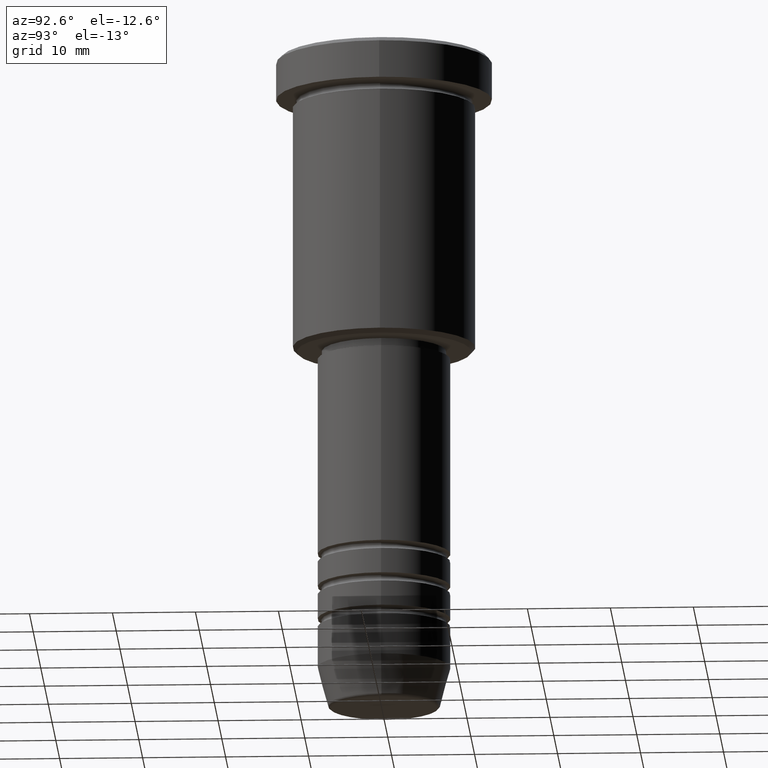
[diagram: clean part render]
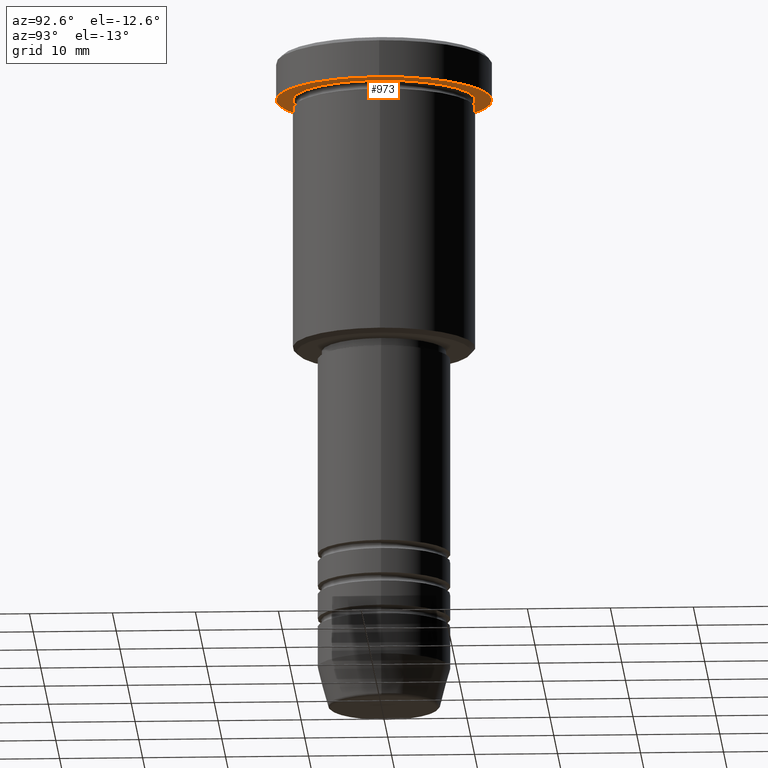
[diagram: same view with one face highlighted and labeled with its STEP entity id]
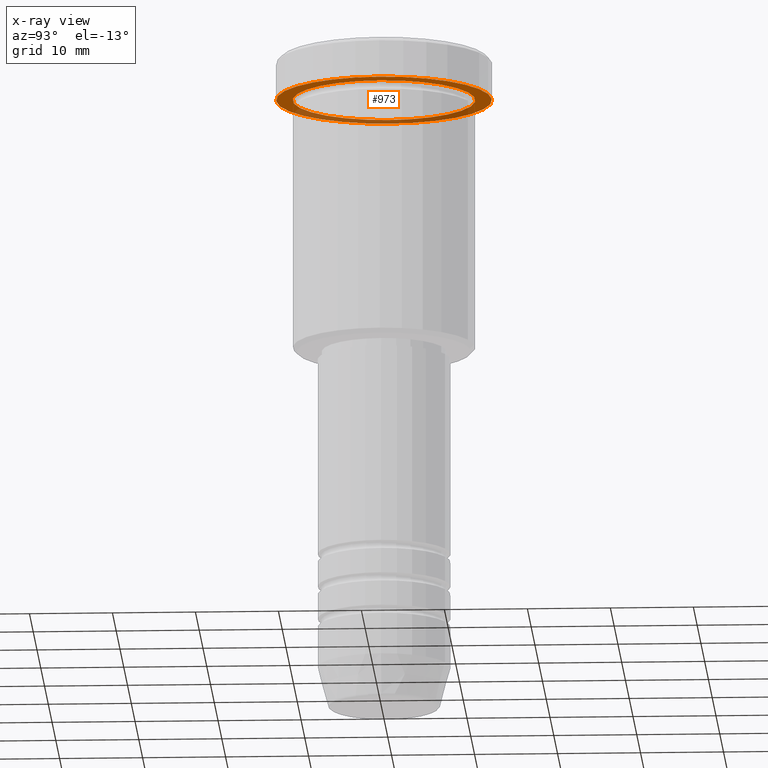
[diagram: x-ray of the same camera — body ghosted, the highlighted face saturated]
A machine part, auxiliary view. The second image highlights one B-rep face of the part: STEP entity #973.
The next image is the same camera in x-ray: the body ghosted, the highlighted face saturated — about 34% of this face is hidden behind the body in this view.
In plain terms, the highlighted planar face has unit normal (0, 0, -1).
Its self-contained STEP definition (entity closure, byte-faithful):
#34 = CIRCLE ( 'NONE', #450, 11.00000000000000000 ) ;
#63 = DIRECTION ( 'NONE',  ( -0.000000000000000000, -0.000000000000000000, 1.000000000000000000 ) ) ;
#91 = AXIS2_PLACEMENT_3D ( 'NONE', #716, #1096, #349 ) ;
#142 = EDGE_CURVE ( 'NONE', #1116, #904, #380, .T. ) ;
#148 = CIRCLE ( 'NONE', #91, 13.00000000000000000 ) ;
#156 = VERTEX_POINT ( 'NONE', #160 ) ;
#160 = CARTESIAN_POINT ( 'NONE',  ( 13.00000000000000000, 0.000000000000000000, -5.000000000000000000 ) ) ;
#179 = EDGE_CURVE ( 'NONE', #156, #1031, #148, .T. ) ;
#217 = EDGE_LOOP ( 'NONE', ( #767, #602 ) ) ;
#298 = ORIENTED_EDGE ( 'NONE', *, *, #179, .F. ) ;
#331 = FACE_OUTER_BOUND ( 'NONE', #723, .T. ) ;
#349 = DIRECTION ( 'NONE',  ( 1.000000000000000000, 0.000000000000000000, 0.000000000000000000 ) ) ;
#365 = CARTESIAN_POINT ( 'NONE',  ( 0.000000000000000000, 0.000000000000000000, -5.000000000000000000 ) ) ;
#380 = CIRCLE ( 'NONE', #909, 11.00000000000000000 ) ;
#420 = CARTESIAN_POINT ( 'NONE',  ( -13.00000000000000000, 1.592040838891559095E-15, -5.000000000000000000 ) ) ;
#426 = DIRECTION ( 'NONE',  ( -1.000000000000000000, 0.000000000000000000, 0.000000000000000000 ) ) ;
#450 = AXIS2_PLACEMENT_3D ( 'NONE', #1166, #715, #642 ) ;
#573 = AXIS2_PLACEMENT_3D ( 'NONE', #365, #742, #1107 ) ;
#602 = ORIENTED_EDGE ( 'NONE', *, *, #142, .T. ) ;
#642 = DIRECTION ( 'NONE',  ( -1.000000000000000000, 0.000000000000000000, 0.000000000000000000 ) ) ;
#680 = PLANE ( 'NONE',  #914 ) ;
#699 = EDGE_CURVE ( 'NONE', #904, #1116, #34, .T. ) ;
#701 = CARTESIAN_POINT ( 'NONE',  ( 0.000000000000000000, 0.000000000000000000, -5.000000000000000000 ) ) ;
#715 = DIRECTION ( 'NONE',  ( -0.000000000000000000, -0.000000000000000000, 1.000000000000000000 ) ) ;
#716 = CARTESIAN_POINT ( 'NONE',  ( 0.000000000000000000, 0.000000000000000000, -5.000000000000000000 ) ) ;
#723 = EDGE_LOOP ( 'NONE', ( #298, #773 ) ) ;
#742 = DIRECTION ( 'NONE',  ( -0.000000000000000000, -0.000000000000000000, 1.000000000000000000 ) ) ;
#767 = ORIENTED_EDGE ( 'NONE', *, *, #699, .T. ) ;
#772 = DIRECTION ( 'NONE',  ( 0.000000000000000000, 0.000000000000000000, -1.000000000000000000 ) ) ;
#773 = ORIENTED_EDGE ( 'NONE', *, *, #1082, .F. ) ;
#857 = CARTESIAN_POINT ( 'NONE',  ( -11.00000000000000000, 0.000000000000000000, -4.999999999999999112 ) ) ;
#904 = VERTEX_POINT ( 'NONE', #857 ) ;
#909 = AXIS2_PLACEMENT_3D ( 'NONE', #701, #63, #426 ) ;
#914 = AXIS2_PLACEMENT_3D ( 'NONE', #962, #772, #1078 ) ;
#962 = CARTESIAN_POINT ( 'NONE',  ( 0.000000000000000000, 13.00000000000000000, -5.000000000000000000 ) ) ;
#973 = ADVANCED_FACE ( 'NONE', ( #1046, #331 ), #680, .T. ) ;
#986 = CIRCLE ( 'NONE', #573, 13.00000000000000000 ) ;
#1017 = CARTESIAN_POINT ( 'NONE',  ( 11.00000000000000000, 1.347111479062088405E-15, -4.999999999999999112 ) ) ;
#1031 = VERTEX_POINT ( 'NONE', #420 ) ;
#1046 = FACE_BOUND ( 'NONE', #217, .T. ) ;
#1078 = DIRECTION ( 'NONE',  ( -1.000000000000000000, 0.000000000000000000, -0.000000000000000000 ) ) ;
#1082 = EDGE_CURVE ( 'NONE', #1031, #156, #986, .T. ) ;
#1096 = DIRECTION ( 'NONE',  ( -0.000000000000000000, -0.000000000000000000, 1.000000000000000000 ) ) ;
#1107 = DIRECTION ( 'NONE',  ( 1.000000000000000000, 0.000000000000000000, 0.000000000000000000 ) ) ;
#1116 = VERTEX_POINT ( 'NONE', #1017 ) ;
#1166 = CARTESIAN_POINT ( 'NONE',  ( 0.000000000000000000, 0.000000000000000000, -5.000000000000000000 ) ) ;